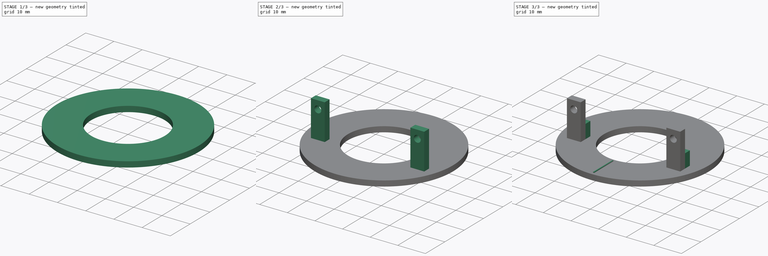
[diagram: build sequence overview — one tinted view per stage of 3, left to right]
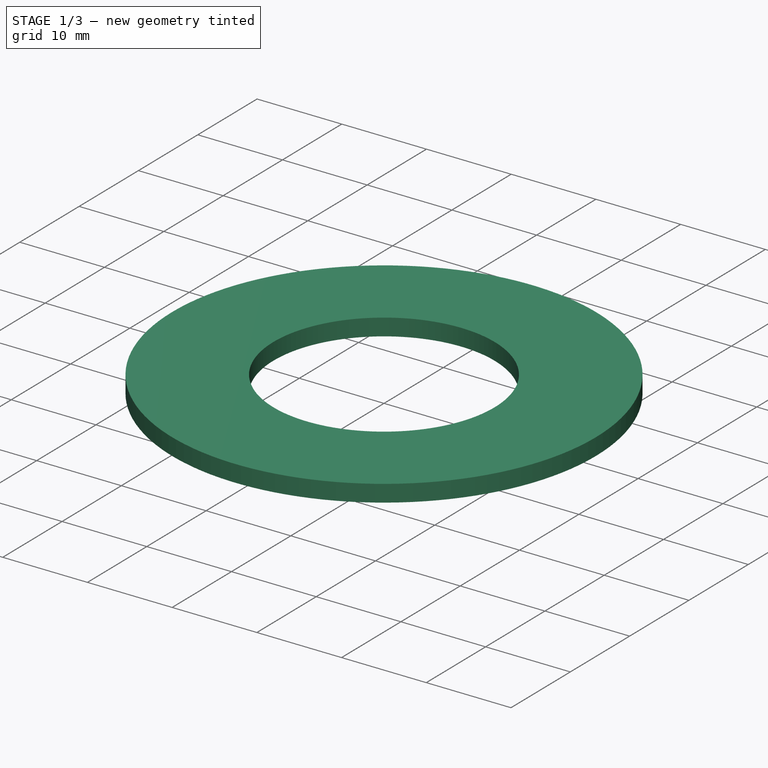
[diagram: stage 1 of 3 — iso view after this stage's code; geometry added in this stage tinted green]
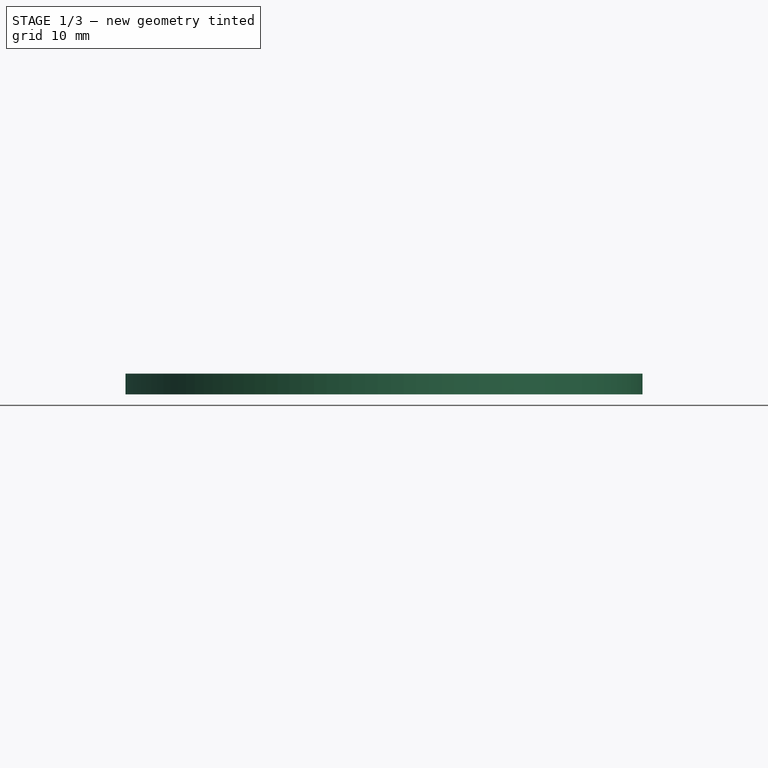
[diagram: stage 1 of 3 — front view after this stage's code; geometry added in this stage tinted green]
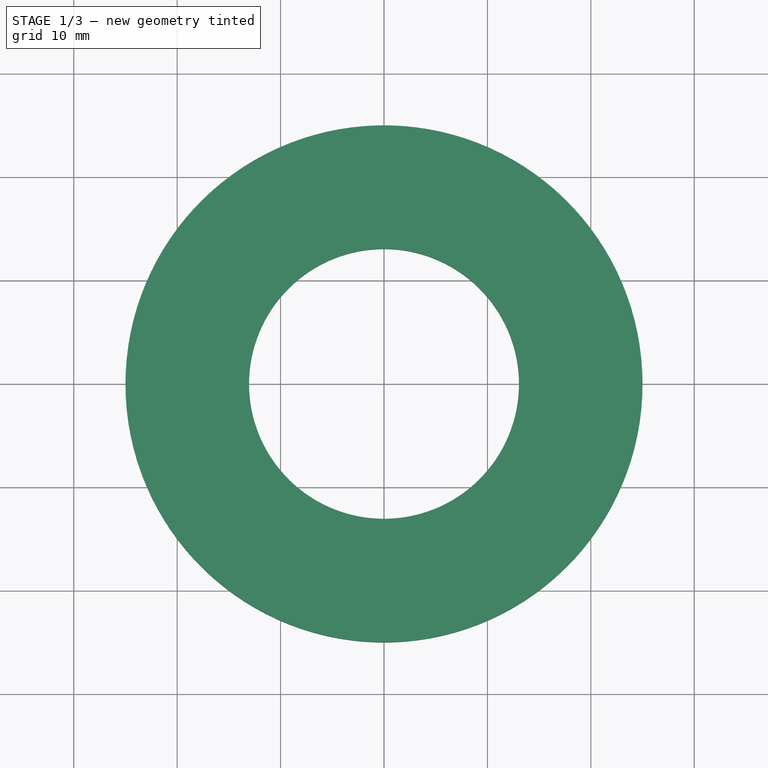
[diagram: stage 1 of 3 — top view after this stage's code; geometry added in this stage tinted green]
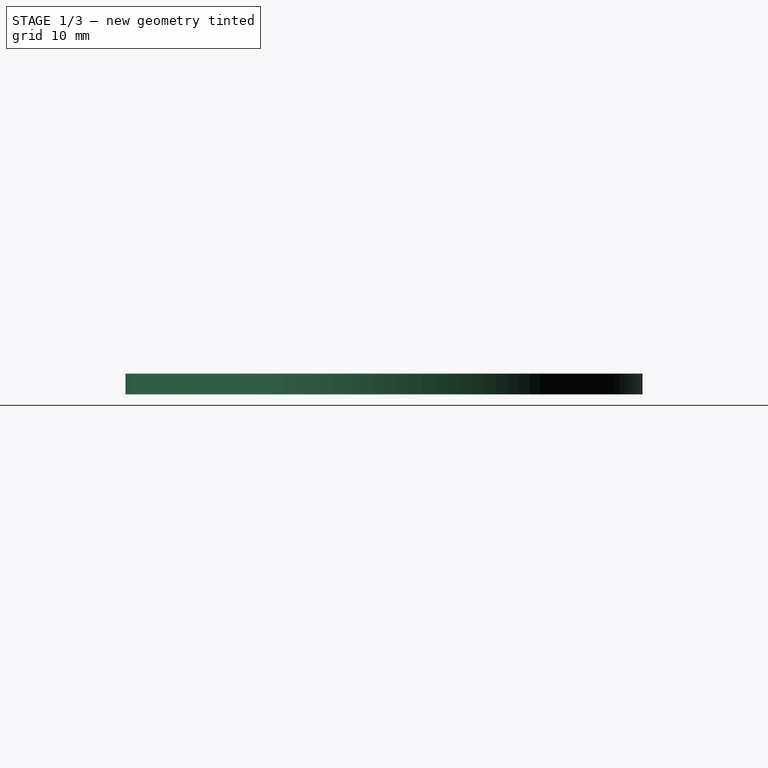
[diagram: stage 1 of 3 — right view after this stage's code; geometry added in this stage tinted green]
FCSTD DOCUMENT  (FreeCAD 0.16R6706 (Git))
Label: Drehteller
License: All rights reserved
LicenseURL: http://de.wikipedia.org/wiki/Alle_Rechte_vorbehalten
objects: Sketcher::SketchObject×6, PartDesign::Pad×4, PartDesign::Pocket×2
note: 18 computed .brp shape members not serialized (recipe doc carries the construction recipe); baked Part::Feature solids carry a one-line shape summary decoded from their .brp

FEATURE [Sketcher::SketchObject] Sketch  label="Basis"
  sketch-geometry (1):
    g0: Circle CenterX=0 CenterY=0 CenterZ=0 NormalX=0 NormalY=0 NormalZ=1 Radius=25
  constraints (2):
    c: Coincident(g0,g-1)
    c: Radius(g0) = 25
FEATURE [PartDesign::Pad] Pad
  Length = 2
  Length2 = 100
  Sketch = -> Sketch
  Type = 0
FEATURE [Sketcher::SketchObject] Sketch001  label="Durchfuehrung"
  Placement = pos=(0,0,2) rot=(0,0,1;0rad)
  Support = -> Pad [Face3]
  sketch-geometry (1):
    g0: Circle CenterX=0 CenterY=0 CenterZ=0 NormalX=0 NormalY=0 NormalZ=1 Radius=13.05
  constraints (2):
    c: Coincident(g0,g-1)
    c: Radius(g0) = 13.05
FEATURE [PartDesign::Pocket] Pocket
  Length = 5
  Sketch = -> Sketch001
  Type = 0
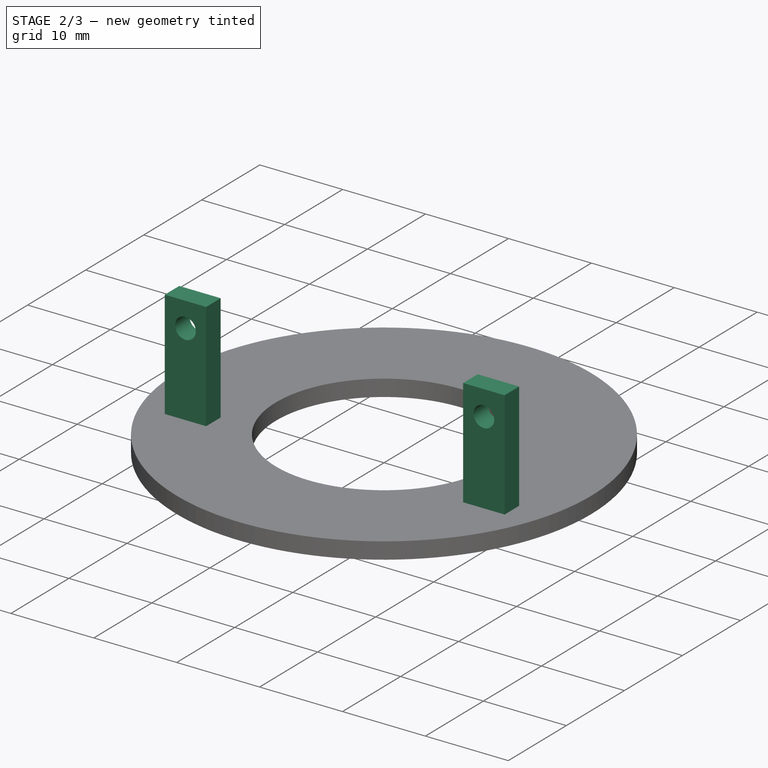
[diagram: stage 2 of 3 — iso view after this stage's code; geometry added in this stage tinted green]
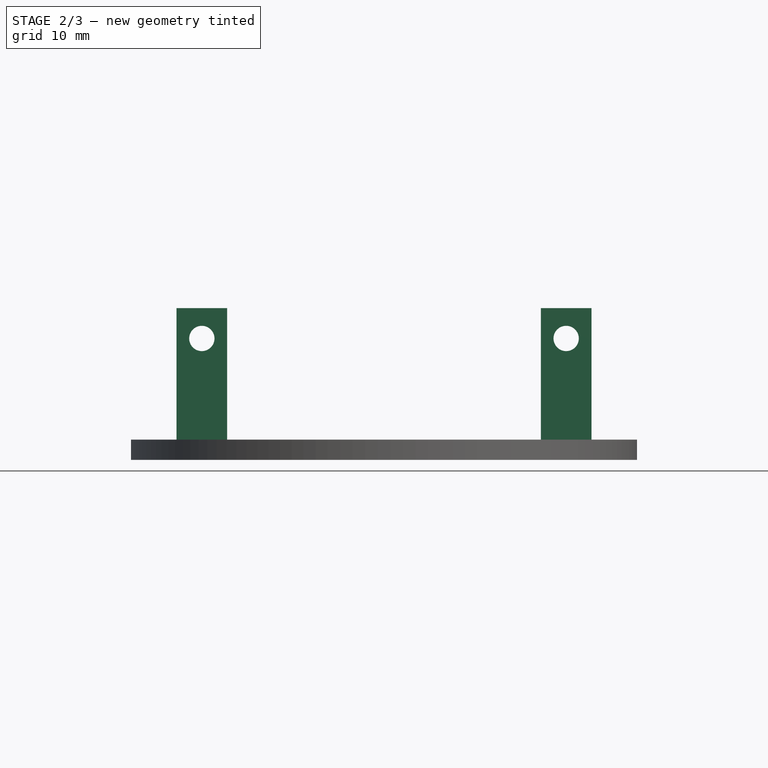
[diagram: stage 2 of 3 — front view after this stage's code; geometry added in this stage tinted green]
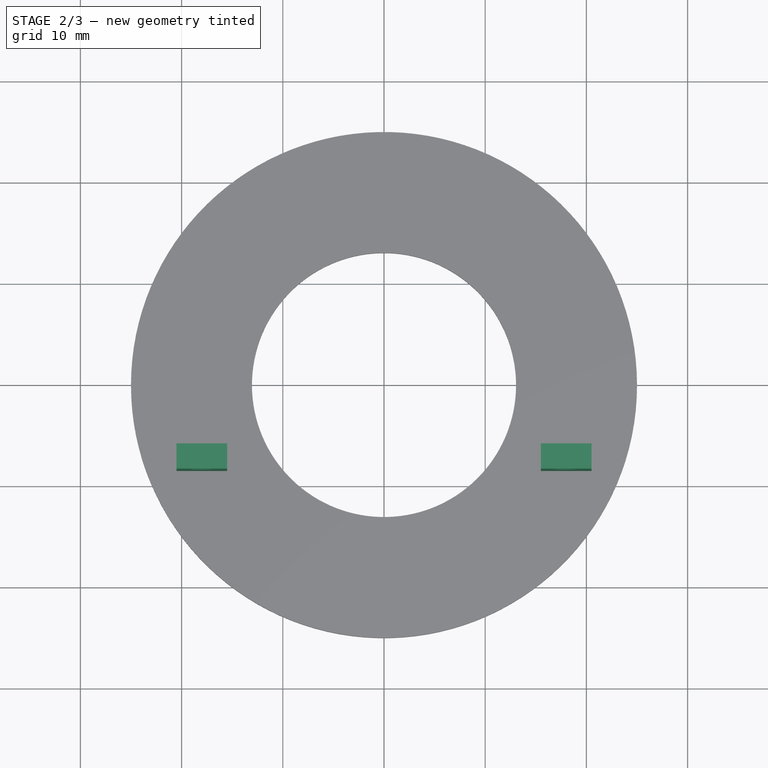
[diagram: stage 2 of 3 — top view after this stage's code; geometry added in this stage tinted green]
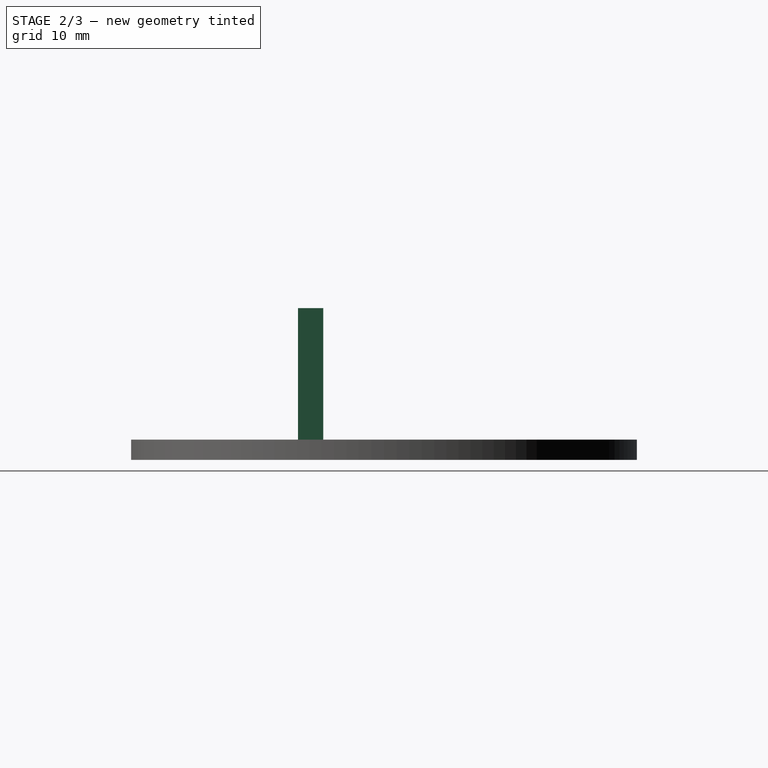
[diagram: stage 2 of 3 — right view after this stage's code; geometry added in this stage tinted green]
FEATURE [Sketcher::SketchObject] Sketch002  label="Halter"
  Placement = pos=(0,0,2) rot=(0,0,1;0rad)
  Support = -> Pocket [Face3]
  sketch-geometry (8):
    g0: LineSegment StartX=-20.5 StartY=-6 StartZ=0 EndX=-15.5 EndY=-6 EndZ=0
    g1: LineSegment StartX=-15.5 StartY=-6 StartZ=0 EndX=-15.5 EndY=-8.5 EndZ=0
    g2: LineSegment StartX=-15.5 StartY=-8.5 StartZ=0 EndX=-20.5 EndY=-8.5 EndZ=0
    g3: LineSegment StartX=-20.5 StartY=-8.5 StartZ=0 EndX=-20.5 EndY=-6 EndZ=0
    g4: LineSegment StartX=15.5 StartY=-6 StartZ=0 EndX=20.5 EndY=-6 EndZ=0
    g5: LineSegment StartX=20.5 StartY=-6 StartZ=0 EndX=20.5 EndY=-8.5 EndZ=0
    g6: LineSegment StartX=20.5 StartY=-8.5 StartZ=0 EndX=15.5 EndY=-8.5 EndZ=0
    g7: LineSegment StartX=15.5 StartY=-8.5 StartZ=0 EndX=15.5 EndY=-6 EndZ=0
  constraints (22):
    c: Coincident(g0,g1)
    c: Coincident(g1,g2)
    c: Coincident(g2,g3)
    c: Coincident(g3,g0)
    c: Horizontal(g0)
    c: Horizontal(g2)
    c: Vertical(g1)
    c: Vertical(g3)
    c: Coincident(g4,g5)
    c: Coincident(g5,g6)
    c: Coincident(g6,g7)
    c: Coincident(g7,g4)
    c: Horizontal(g4)
    c: Horizontal(g6)
    c: Vertical(g5)
    c: Vertical(g7)
    c: DistanceX(g2,g2) = 5
    c: DistanceY(g3,g3) = 2.5
    c: Symmetric(g0,g4,g-2)
    c: Symmetric(g2,g5,g-2)
    c: DistanceX(g2,g5) = 41
    c: DistanceY(g4,g-1) = 6
FEATURE [PartDesign::Pad] Pad001
  Length = 13
  Length2 = 100
  Sketch = -> Sketch002
  Type = 0
FEATURE [Sketcher::SketchObject] Sketch003  label="Schraubenloecher"
  Placement = pos=(0,-8.5,0) rot=(1,0,0;1.5708rad)
  Support = -> Pad001 [Face12]
  sketch-geometry (2):
    g0: Circle CenterX=-18 CenterY=12 CenterZ=0 NormalX=0 NormalY=0 NormalZ=1 Radius=1.25
    g1: Circle CenterX=18 CenterY=12 CenterZ=0 NormalX=0 NormalY=0 NormalZ=1 Radius=1.25
  constraints (5):
    c: Symmetric(g0,g1,g-2)
    c: DistanceX(g0,g1) = 36
    c: Radius(g0) = 1.25
    c: Equal(g0,g1)
    c: DistanceY(g-1,g0) = 12
FEATURE [PartDesign::Pocket] Pocket001
  Length = 5
  Sketch = -> Sketch003
  Type = 0
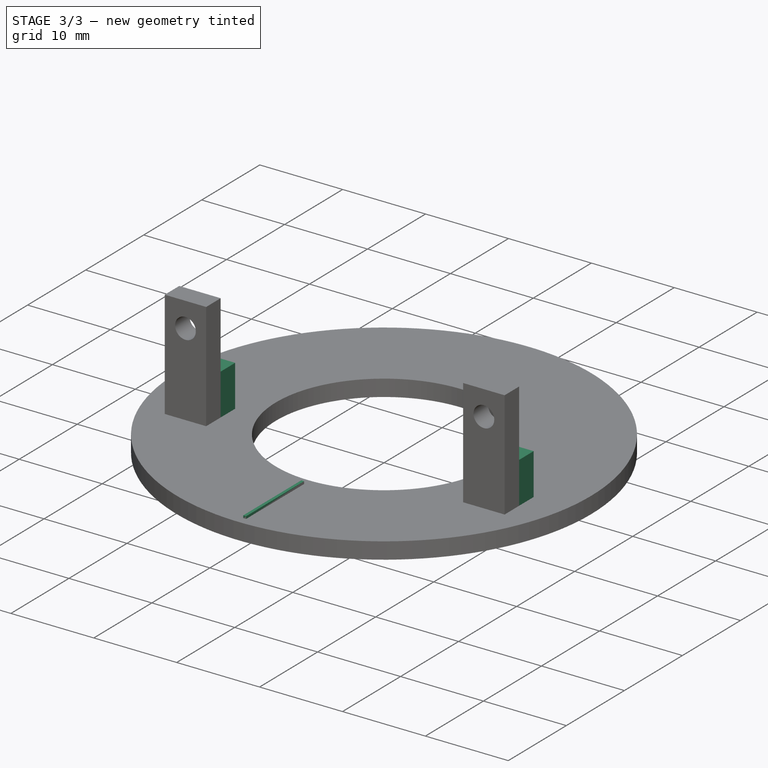
[diagram: stage 3 of 3 — iso view after this stage's code; geometry added in this stage tinted green]
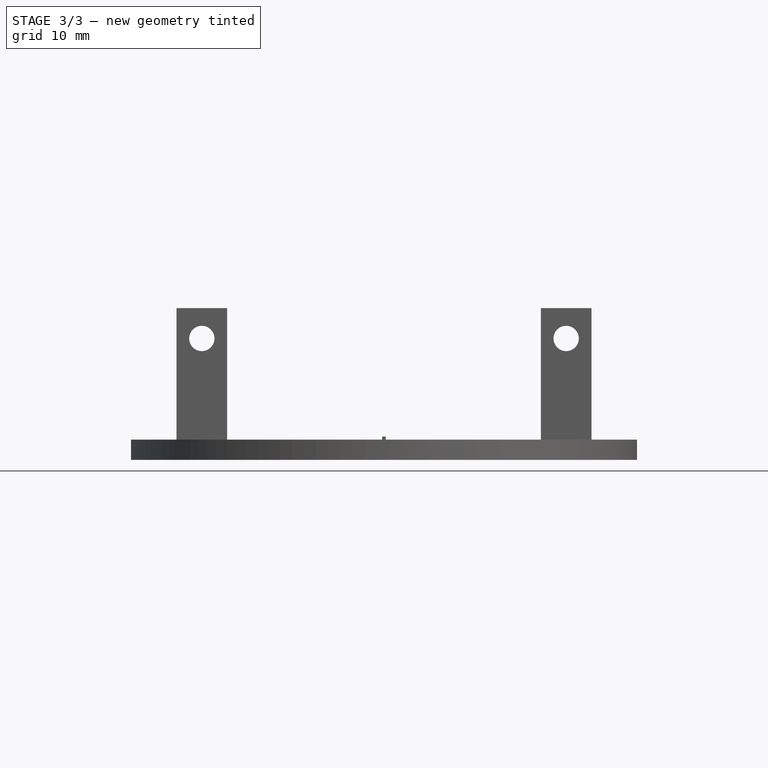
[diagram: stage 3 of 3 — front view after this stage's code; geometry added in this stage tinted green]
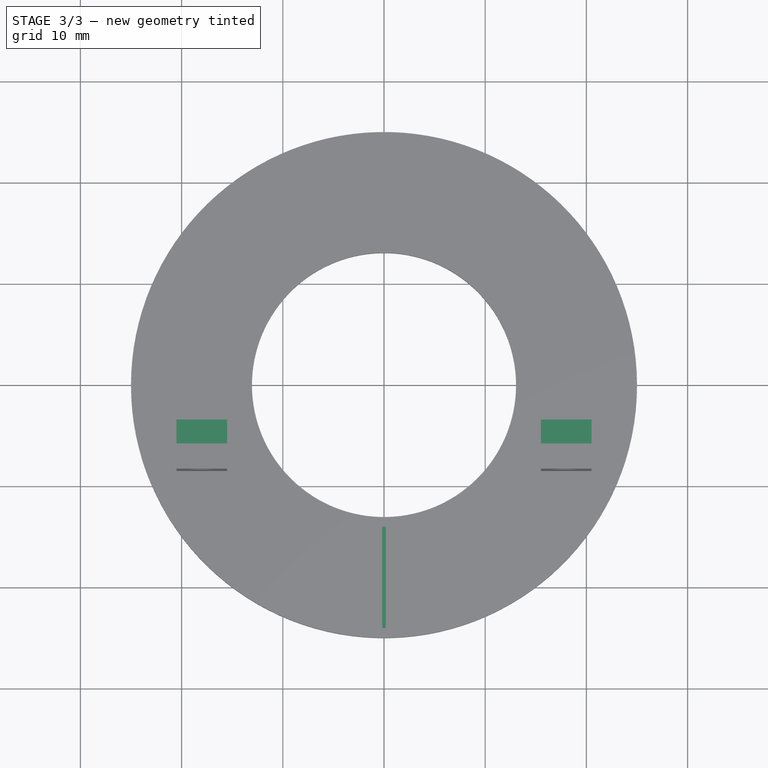
[diagram: stage 3 of 3 — top view after this stage's code; geometry added in this stage tinted green]
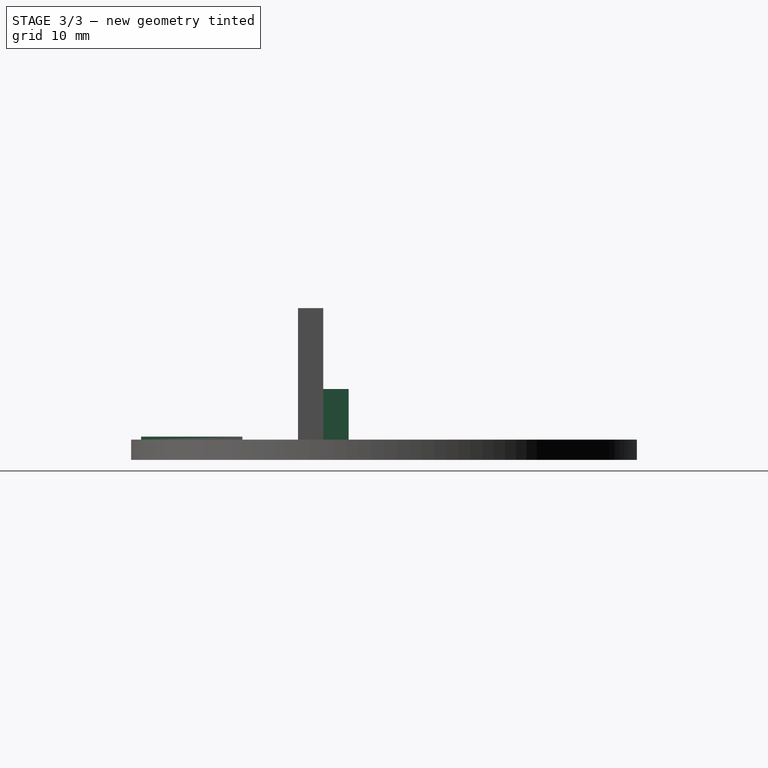
[diagram: stage 3 of 3 — right view after this stage's code; geometry added in this stage tinted green]
FEATURE [Sketcher::SketchObject] Sketch004  label="Stuetzen"
  Placement = pos=(0,0,2) rot=(0,0,1;0rad)
  Support = -> Pocket001 [Face3]
  sketch-geometry (8):
    g0: LineSegment StartX=-20.5 StartY=-3.5 StartZ=0 EndX=-15.5 EndY=-3.5 EndZ=0
    g1: LineSegment StartX=-15.5 StartY=-3.5 StartZ=0 EndX=-15.5 EndY=-6 EndZ=0
    g2: LineSegment StartX=-15.5 StartY=-6 StartZ=0 EndX=-20.5 EndY=-6 EndZ=0
    g3: LineSegment StartX=-20.5 StartY=-6 StartZ=0 EndX=-20.5 EndY=-3.5 EndZ=0
    g4: LineSegment StartX=15.5 StartY=-3.5 StartZ=0 EndX=20.5 EndY=-3.5 EndZ=0
    g5: LineSegment StartX=20.5 StartY=-3.5 StartZ=0 EndX=20.5 EndY=-6 EndZ=0
    g6: LineSegment StartX=20.5 StartY=-6 StartZ=0 EndX=15.5 EndY=-6 EndZ=0
    g7: LineSegment StartX=15.5 StartY=-6 StartZ=0 EndX=15.5 EndY=-3.5 EndZ=0
  constraints (22):
    c: Coincident(g0,g1)
    c: Coincident(g1,g2)
    c: Coincident(g2,g3)
    c: Coincident(g3,g0)
    c: Horizontal(g0)
    c: Horizontal(g2)
    c: Vertical(g1)
    c: Vertical(g3)
    c: Coincident(g4,g5)
    c: Coincident(g5,g6)
    c: Coincident(g6,g7)
    c: Coincident(g7,g4)
    c: Horizontal(g4)
    c: Horizontal(g6)
    c: Vertical(g5)
    c: Vertical(g7)
    c: Symmetric(g0,g4,g-2)
    c: Symmetric(g2,g5,g-2)
    c: DistanceY(g2,g-1) = 6
    c: DistanceY(g3,g3) = 2.5
    c: DistanceX(g0,g0) = 5
    c: DistanceX(g0,g4) = 41
FEATURE [PartDesign::Pad] Pad002
  Length = 5
  Length2 = 100
  Sketch = -> Sketch004
  Type = 0
FEATURE [Sketcher::SketchObject] Sketch005
  Placement = pos=(0,0,2) rot=(0,0,1;0rad)
  Support = -> Pad002 [Face3]
  sketch-geometry (4):
    g0: LineSegment StartX=-0.175 StartY=-14 StartZ=0 EndX=0.175 EndY=-14 EndZ=0
    g1: LineSegment StartX=0.175 StartY=-14 StartZ=0 EndX=0.175 EndY=-24 EndZ=0
    g2: LineSegment StartX=0.175 StartY=-24 StartZ=0 EndX=-0.175 EndY=-24 EndZ=0
    g3: LineSegment StartX=-0.175 StartY=-24 StartZ=0 EndX=-0.175 EndY=-14 EndZ=0
  constraints (12):
    c: Coincident(g0,g1)
    c: Coincident(g1,g2)
    c: Coincident(g2,g3)
    c: Coincident(g3,g0)
    c: Horizontal(g0)
    c: Horizontal(g2)
    c: Vertical(g1)
    c: Vertical(g3)
    c: Symmetric(g0,g0,g-2)
    c: DistanceX(g2,g2) = 0.35
    c: DistanceY(g1,g1) = 10
    c: DistanceY(g0,g-1) = 14
FEATURE [PartDesign::Pad] Pad003
  Length = 0.3
  Length2 = 100
  Sketch = -> Sketch005
  Type = 0
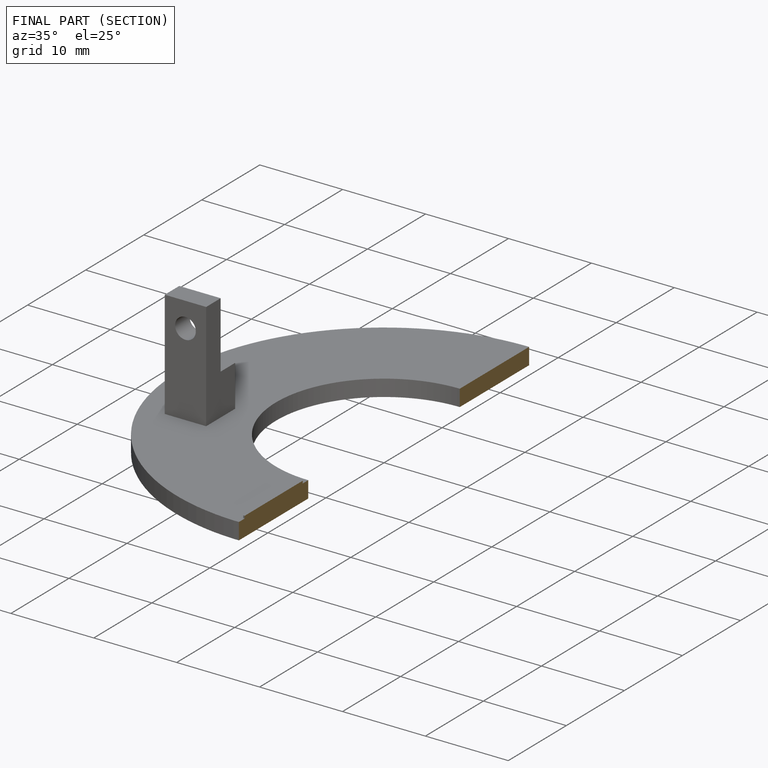
[diagram: finished part — half-section view (interior)]
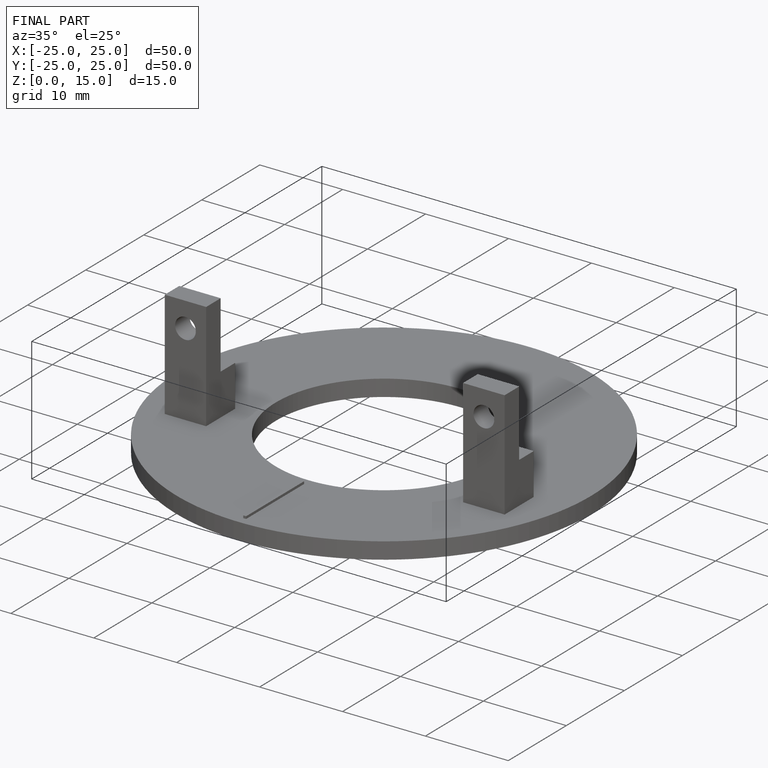
[diagram: finished part — iso view with bounding-box wireframe]
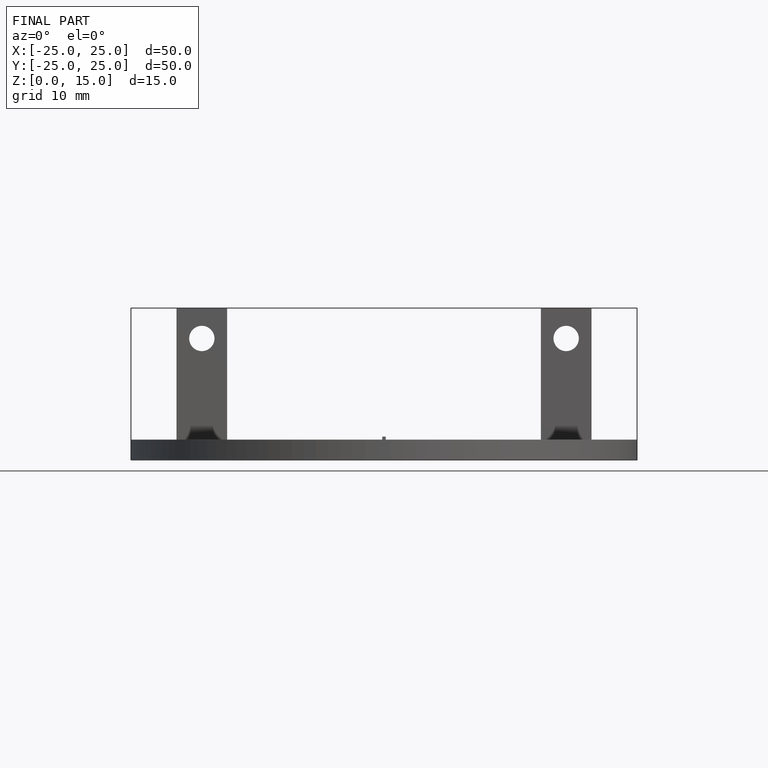
[diagram: finished part — front view with bounding-box wireframe]
